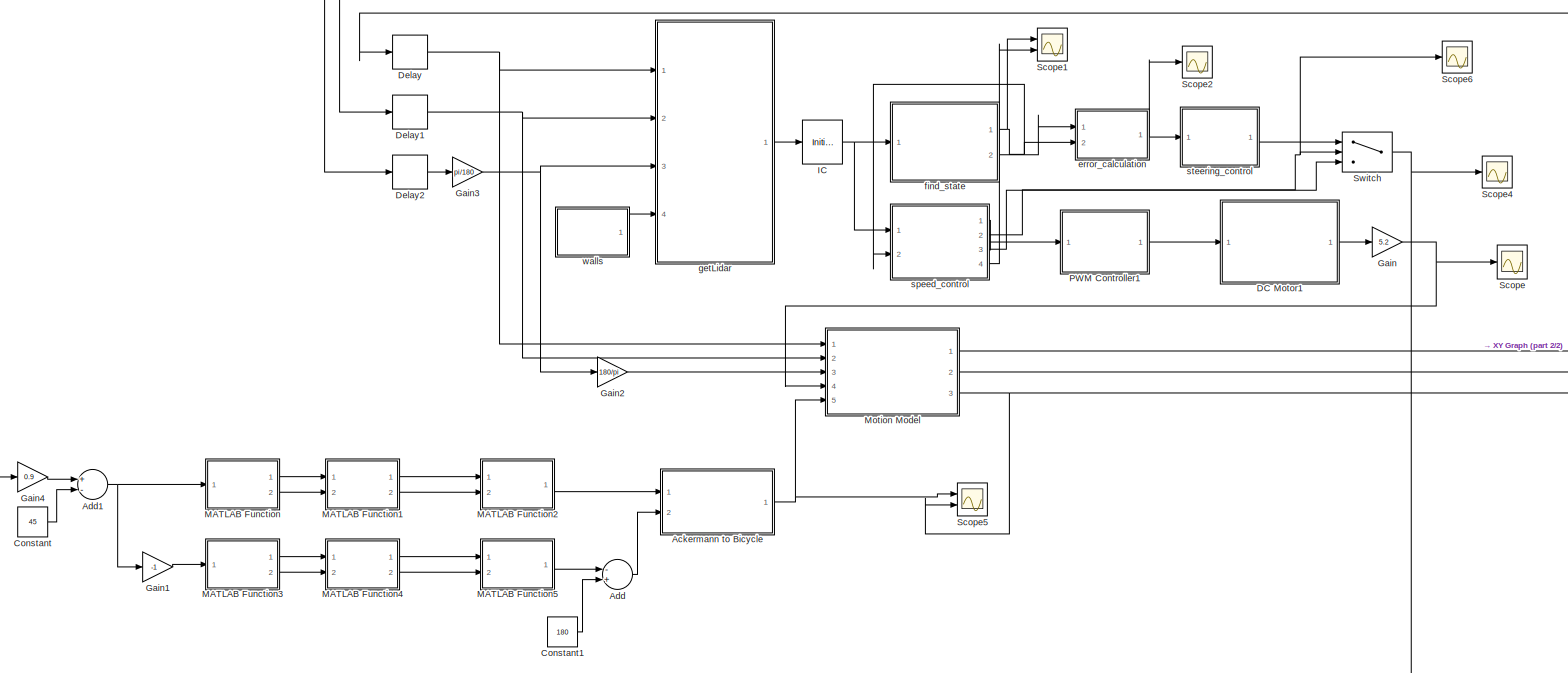
[diagram: root canvas - part 1/2, most of the canvas]
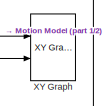
[diagram: root canvas - part 2/2, middle right region]
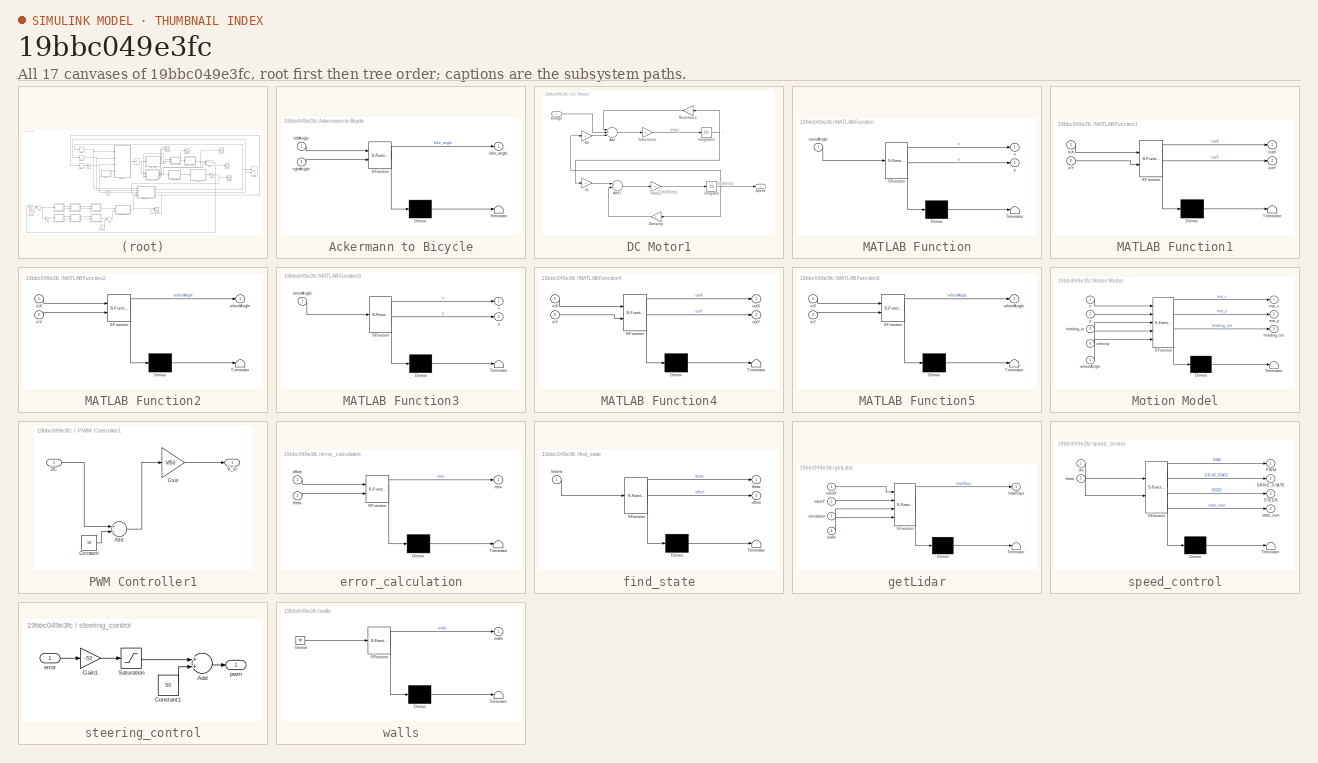
[diagram: thumbnail index - all 17 canvases of the model, root first then tree order]
MODEL slx_19bbc049e3fc
KIND model
CONFIG AbsTol = auto
CONFIG FixedStep = 0.1
CONFIG MaxStep = auto
CONFIG MinStep = auto
CONFIG RelTol = 1e-3
CONFIG SampleTimeConstraint = Unconstrained
CONFIG Solver = FixedStepAuto
CONFIG SolverMode = Auto
CONFIG SolverName = FixedStepAuto
CONFIG StartTime = 0.0
CONFIG StopTime = 600
BLOCK [SubSystem] Ackermann to Bicycle
  ErrorFcn = Stateflow.Translate.translate
  PermitHierarchicalResolution = ExplicitOnly
  Ports = [2, 1]
  RequestExecContextInheritance = off
  SFBlockType = MATLAB Function
  TreatAsAtomicUnit = on
  Variant = off
BLOCK [Demux] Ackermann to Bicycle/ Demux 
  Outputs = 1
  Ports = [1, 1]
BLOCK [S-Function] Ackermann to Bicycle/ SFunction 
  EnableBusSupport = on
  FunctionName = sf_sfun
  PortCounts = [2 2]
  Ports = [2, 2]
  SFunctionDeploymentMode = off
  Tag = Stateflow S-Function Steering 10
BLOCK [Terminator] Ackermann to Bicycle/ Terminator 
BLOCK [Outport] Ackermann to Bicycle/bike_angle
  IconDisplay = Port number
BLOCK [Inport] Ackermann to Bicycle/leftAngle
  IconDisplay = Port number
BLOCK [Inport] Ackermann to Bicycle/rightAngle
  IconDisplay = Port number
  Port = 2
BLOCK [Sum] Add
  InputSameDT = off
  Inputs = -+
  OutDataTypeStr = Inherit: Inherit via internal rule
  Ports = [2, 1]
  SaturateOnIntegerOverflow = off
BLOCK [Sum] Add1
  InputSameDT = off
  Inputs = +-
  OutDataTypeStr = Inherit: Inherit via internal rule
  Ports = [2, 1]
  SaturateOnIntegerOverflow = off
BLOCK [Constant] Constant
  Value = 45
BLOCK [Constant] Constant1
  Value = 180
BLOCK [SubSystem] DC Motor1
  Ports = [1, 1]
  RequestExecContextInheritance = off
  Variant = off
BLOCK [Sum] DC Motor1/Add
  InputSameDT = off
  Inputs = -+-
  OutDataTypeStr = Inherit: Inherit via internal rule
  Ports = [3, 1]
  SaturateOnIntegerOverflow = off
BLOCK [Sum] DC Motor1/Add1
  InputSameDT = off
  Inputs = +-
  OutDataTypeStr = Inherit: Inherit via internal rule
  Ports = [2, 1]
  SaturateOnIntegerOverflow = off
BLOCK [Gain] DC Motor1/Damping
  Gain = b
  OutDataTypeStr = Inherit: Inherit via internal rule
  ParamDataTypeStr = Inherit: Inherit via internal rule
  SaturateOnIntegerOverflow = off
BLOCK [Gain] DC Motor1/Inductunce
  Gain = 1/L
  OutDataTypeStr = Inherit: Inherit via internal rule
  ParamDataTypeStr = Inherit: Inherit via internal rule
  SaturateOnIntegerOverflow = off
BLOCK [Gain] DC Motor1/Inertia
  Gain = 1/J
  OutDataTypeStr = Inherit: Inherit via internal rule
  ParamDataTypeStr = Inherit: Inherit via internal rule
  SaturateOnIntegerOverflow = off
BLOCK [Integrator] DC Motor1/Integrator
  Ports = [1, 1]
BLOCK [Integrator] DC Motor1/Integrator1
  Ports = [1, 1]
BLOCK [Gain] DC Motor1/Ke
  Gain = K
  OutDataTypeStr = Inherit: Inherit via internal rule
  ParamDataTypeStr = Inherit: Inherit via internal rule
  SaturateOnIntegerOverflow = off
BLOCK [Gain] DC Motor1/Kt
  Gain = K
  OutDataTypeStr = Inherit: Inherit via internal rule
  ParamDataTypeStr = Inherit: Inherit via internal rule
  SaturateOnIntegerOverflow = off
BLOCK [Gain] DC Motor1/Resistance
  Gain = R
  OutDataTypeStr = Inherit: Inherit via internal rule
  ParamDataTypeStr = Inherit: Inherit via internal rule
  SaturateOnIntegerOverflow = off
BLOCK [Outport] DC Motor1/Speed
  IconDisplay = Port number
BLOCK [Inport] DC Motor1/Voltage
  IconDisplay = Port number
BLOCK [Delay] Delay
  DelayLength = 1
  InitialCondition = 40
  InputPortMap = u0
  Ports = [1, 1]
BLOCK [Delay] Delay1
  DelayLength = 1
  InitialCondition = 33
  InputPortMap = u0
  Ports = [1, 1]
BLOCK [Delay] Delay2
  DelayLength = 1
  InitialCondition = -90
  InputPortMap = u0
  Ports = [1, 1]
BLOCK [Gain] Gain
  Gain = 5.2
  OutDataTypeStr = Inherit: Inherit via internal rule
  ParamDataTypeStr = Inherit: Inherit via internal rule
  SaturateOnIntegerOverflow = off
BLOCK [Gain] Gain1
  Gain = -1
  OutDataTypeStr = Inherit: Inherit via internal rule
  ParamDataTypeStr = Inherit: Inherit via internal rule
  SaturateOnIntegerOverflow = off
BLOCK [Gain] Gain2
  Gain = 180/pi
  OutDataTypeStr = Inherit: Inherit via internal rule
  ParamDataTypeStr = Inherit: Inherit via internal rule
  SaturateOnIntegerOverflow = off
BLOCK [Gain] Gain3
  Gain = pi/180
  OutDataTypeStr = Inherit: Inherit via internal rule
  ParamDataTypeStr = Inherit: Inherit via internal rule
  SaturateOnIntegerOverflow = off
BLOCK [Gain] Gain4
  Gain = 0.9
  OutDataTypeStr = Inherit: Inherit via internal rule
  ParamDataTypeStr = Inherit: Inherit via internal rule
  SaturateOnIntegerOverflow = off
BLOCK [InitialCondition] IC
  Value = [60,0;60,0.012296;60,0.024592;60,0.036888;60,0.049183;60,0.061479;60,0.073775;60,0.086071;60,0.098367;60,0.11066;60,0.12296;60,0.13525;60,0.14755;60,0.15985;60,0.17214;60,0.18444;60,0.19673;60,0.20903;60,0.22133;60,0.23362;60,0.24592;60,0.25821;60,0.27051;60,0.2828;60,0.2951;60,0.3074;60,0.31969;60,0.33199;60,0.34428;60,0.35658;60,0.36888;60,0.38117;60,0.39347;60,0.40576;60,0.41806;60,0.43036;60,0...<+4751ch>
BLOCK [SubSystem] MATLAB Function
  ErrorFcn = Stateflow.Translate.translate
  PermitHierarchicalResolution = ExplicitOnly
  Ports = [1, 2]
  RequestExecContextInheritance = off
  SFBlockType = MATLAB Function
  TreatAsAtomicUnit = on
  Variant = off
BLOCK [Demux] MATLAB Function/ Demux 
  Outputs = 1
  Ports = [1, 1]
BLOCK [S-Function] MATLAB Function/ SFunction 
  EnableBusSupport = on
  FunctionName = sf_sfun
  PortCounts = [1 3]
  Ports = [1, 3]
  SFunctionDeploymentMode = off
  Tag = Stateflow S-Function Steering 2
BLOCK [Terminator] MATLAB Function/ Terminator 
BLOCK [Inport] MATLAB Function/servoAngle
  IconDisplay = Port number
BLOCK [Outport] MATLAB Function/x
  IconDisplay = Port number
BLOCK [Outport] MATLAB Function/y
  IconDisplay = Port number
  Port = 2
BLOCK [SubSystem] MATLAB Function1
  ErrorFcn = Stateflow.Translate.translate
  PermitHierarchicalResolution = ExplicitOnly
  Ports = [2, 2]
  RequestExecContextInheritance = off
  SFBlockType = MATLAB Function
  TreatAsAtomicUnit = on
  Variant = off
BLOCK [Demux] MATLAB Function1/ Demux 
  Outputs = 1
  Ports = [1, 1]
BLOCK [S-Function] MATLAB Function1/ SFunction 
  EnableBusSupport = on
  FunctionName = sf_sfun
  PortCounts = [2 3]
  Ports = [2, 3]
  SFunctionDeploymentMode = off
  Tag = Stateflow S-Function Steering 1
BLOCK [Terminator] MATLAB Function1/ Terminator 
BLOCK [Inport] MATLAB Function1/inX
  IconDisplay = Port number
BLOCK [Inport] MATLAB Function1/inY
  IconDisplay = Port number
  Port = 2
BLOCK [Outport] MATLAB Function1/outX
  IconDisplay = Port number
BLOCK [Outport] MATLAB Function1/outY
  IconDisplay = Port number
  Port = 2
BLOCK [SubSystem] MATLAB Function2
  ErrorFcn = Stateflow.Translate.translate
  PermitHierarchicalResolution = ExplicitOnly
  Ports = [2, 1]
  RequestExecContextInheritance = off
  SFBlockType = MATLAB Function
  TreatAsAtomicUnit = on
  Variant = off
BLOCK [Demux] MATLAB Function2/ Demux 
  Outputs = 1
  Ports = [1, 1]
BLOCK [S-Function] MATLAB Function2/ SFunction 
  EnableBusSupport = on
  FunctionName = sf_sfun
  PortCounts = [2 2]
  Ports = [2, 2]
  SFunctionDeploymentMode = off
  Tag = Stateflow S-Function Steering 3
BLOCK [Terminator] MATLAB Function2/ Terminator 
BLOCK [Inport] MATLAB Function2/inX
  IconDisplay = Port number
BLOCK [Inport] MATLAB Function2/inY
  IconDisplay = Port number
  Port = 2
BLOCK [Outport] MATLAB Function2/wheelAngle
  IconDisplay = Port number
BLOCK [SubSystem] MATLAB Function3
  ErrorFcn = Stateflow.Translate.translate
  PermitHierarchicalResolution = ExplicitOnly
  Ports = [1, 2]
  RequestExecContextInheritance = off
  SFBlockType = MATLAB Function
  TreatAsAtomicUnit = on
  Variant = off
BLOCK [Demux] MATLAB Function3/ Demux 
  Outputs = 1
  Ports = [1, 1]
BLOCK [S-Function] MATLAB Function3/ SFunction 
  EnableBusSupport = on
  FunctionName = sf_sfun
  PortCounts = [1 3]
  Ports = [1, 3]
  SFunctionDeploymentMode = off
  Tag = Stateflow S-Function Steering 11
BLOCK [Terminator] MATLAB Function3/ Terminator 
BLOCK [Inport] MATLAB Function3/servoAngle
  IconDisplay = Port number
BLOCK [Outport] MATLAB Function3/x
  IconDisplay = Port number
BLOCK [Outport] MATLAB Function3/y
  IconDisplay = Port number
  Port = 2
BLOCK [SubSystem] MATLAB Function4
  ErrorFcn = Stateflow.Translate.translate
  PermitHierarchicalResolution = ExplicitOnly
  Ports = [2, 2]
  RequestExecContextInheritance = off
  SFBlockType = MATLAB Function
  TreatAsAtomicUnit = on
  Variant = off
BLOCK [Demux] MATLAB Function4/ Demux 
  Outputs = 1
  Ports = [1, 1]
BLOCK [S-Function] MATLAB Function4/ SFunction 
  EnableBusSupport = on
  FunctionName = sf_sfun
  PortCounts = [2 3]
  Ports = [2, 3]
  SFunctionDeploymentMode = off
  Tag = Stateflow S-Function Steering 12
BLOCK [Terminator] MATLAB Function4/ Terminator 
BLOCK [Inport] MATLAB Function4/inX
  IconDisplay = Port number
BLOCK [Inport] MATLAB Function4/inY
  IconDisplay = Port number
  Port = 2
BLOCK [Outport] MATLAB Function4/outX
  IconDisplay = Port number
BLOCK [Outport] MATLAB Function4/outY
  IconDisplay = Port number
  Port = 2
BLOCK [SubSystem] MATLAB Function5
  ErrorFcn = Stateflow.Translate.translate
  PermitHierarchicalResolution = ExplicitOnly
  Ports = [2, 1]
  RequestExecContextInheritance = off
  SFBlockType = MATLAB Function
  TreatAsAtomicUnit = on
  Variant = off
BLOCK [Demux] MATLAB Function5/ Demux 
  Outputs = 1
  Ports = [1, 1]
BLOCK [S-Function] MATLAB Function5/ SFunction 
  EnableBusSupport = on
  FunctionName = sf_sfun
  PortCounts = [2 2]
  Ports = [2, 2]
  SFunctionDeploymentMode = off
  Tag = Stateflow S-Function Steering 13
BLOCK [Terminator] MATLAB Function5/ Terminator 
BLOCK [Inport] MATLAB Function5/inX
  IconDisplay = Port number
BLOCK [Inport] MATLAB Function5/inY
  IconDisplay = Port number
  Port = 2
BLOCK [Outport] MATLAB Function5/wheelAngle
  IconDisplay = Port number
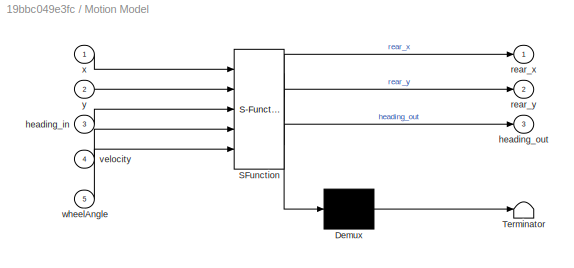
BLOCK [SubSystem] Motion Model
  ErrorFcn = Stateflow.Translate.translate
  PermitHierarchicalResolution = ExplicitOnly
  Ports = [5, 3]
  RequestExecContextInheritance = off
  SFBlockType = MATLAB Function
  TreatAsAtomicUnit = on
  Variant = off
BLOCK [Demux] Motion Model/ Demux 
  Outputs = 1
  Ports = [1, 1]
BLOCK [S-Function] Motion Model/ SFunction 
  EnableBusSupport = on
  FunctionName = sf_sfun
  PortCounts = [5 4]
  Ports = [5, 4]
  SFunctionDeploymentMode = off
  Tag = Stateflow S-Function Steering 9
BLOCK [Terminator] Motion Model/ Terminator 
BLOCK [Inport] Motion Model/heading_in
  IconDisplay = Port number
  Port = 3
BLOCK [Outport] Motion Model/heading_out
  IconDisplay = Port number
  Port = 3
BLOCK [Outport] Motion Model/rear_x
  IconDisplay = Port number
BLOCK [Outport] Motion Model/rear_y
  IconDisplay = Port number
  Port = 2
BLOCK [Inport] Motion Model/velocity
  IconDisplay = Port number
  Port = 4
BLOCK [Inport] Motion Model/wheelAngle
  IconDisplay = Port number
  Port = 5
BLOCK [Inport] Motion Model/x
  IconDisplay = Port number
BLOCK [Inport] Motion Model/y
  IconDisplay = Port number
  Port = 2
BLOCK [SubSystem] PWM Controller1
  Ports = [1, 1]
  RequestExecContextInheritance = off
  Variant = off
BLOCK [Sum] PWM Controller1/Add
  InputSameDT = off
  Inputs = +-
  OutDataTypeStr = Inherit: Inherit via internal rule
  Ports = [2, 1]
  SaturateOnIntegerOverflow = off
BLOCK [Constant] PWM Controller1/Constant
  Value = 50
BLOCK [Inport] PWM Controller1/DC
  IconDisplay = Port number
BLOCK [Gain] PWM Controller1/Gain
  Gain = V/50
  OutDataTypeStr = Inherit: Inherit via internal rule
  ParamDataTypeStr = Inherit: Inherit via internal rule
  SaturateOnIntegerOverflow = off
BLOCK [Outport] PWM Controller1/V_in
  IconDisplay = Port number
BLOCK [Scope] Scope
  Ports = [1]
  ScopeSpecificationString = Simulink.scopes.TimeScopeBlockCfg('CurrentConfiguration', extmgr.ConfigurationSet(extmgr.Configuration('Core','General UI',true),extmgr.Configuration('Core','Source UI',true),extmgr.Configuration('Sources','WiredSimulink',true),extmgr.Configuration('Visuals','Time Domain',true,'SerializedDisplays',{struct('MinYLimReal','-0.77922','MaxYLimReal','1.81818','YLabelReal','','MinYLimMag','0.00000','MaxY...<+1398ch>
BLOCK [Scope] Scope1
  NumInputPorts = 2
  Ports = [2]
  ScopeSpecificationString = Simulink.scopes.TimeScopeBlockCfg('CurrentConfiguration', extmgr.ConfigurationSet(extmgr.Configuration('Core','General UI',true),extmgr.Configuration('Core','Source UI',true),extmgr.Configuration('Sources','WiredSimulink',true,'DataLoggingVariableName','ScopeData1'),extmgr.Configuration('Visuals','Time Domain',true,'SerializedDisplays',{struct('MinYLimReal','-2.50334','MaxYLimReal','6.94482','YLab...<+1429ch>
BLOCK [Scope] Scope2
  Ports = [1]
  ScopeSpecificationString = Simulink.scopes.TimeScopeBlockCfg('CurrentConfiguration', extmgr.ConfigurationSet(extmgr.Configuration('Core','General UI',true),extmgr.Configuration('Core','Source UI',true),extmgr.Configuration('Sources','WiredSimulink',true,'DataLoggingVariableName','ScopeData2'),extmgr.Configuration('Visuals','Time Domain',true,'SerializedDisplays',{struct('MinYLimReal','-25.334','MaxYLimReal','32.66562','YLab...<+1433ch>
BLOCK [Scope] Scope4
  Ports = [1]
  ScopeSpecificationString = Simulink.scopes.TimeScopeBlockCfg('CurrentConfiguration', extmgr.ConfigurationSet(extmgr.Configuration('Core','General UI',true),extmgr.Configuration('Core','Source UI',true),extmgr.Configuration('Sources','WiredSimulink',true,'DataLoggingVariableName','ScopeData2'),extmgr.Configuration('Visuals','Time Domain',true,'SerializedDisplays',{struct('MinYLimReal','-12.5','MaxYLimReal','112.5','YLabelRea...<+1406ch>
BLOCK [Scope] Scope5
  NumInputPorts = 2
  Ports = [2]
  ScopeSpecificationString = Simulink.scopes.TimeScopeBlockCfg('CurrentConfiguration', extmgr.ConfigurationSet(extmgr.Configuration('Core','General UI',true),extmgr.Configuration('Core','Source UI',true),extmgr.Configuration('Sources','WiredSimulink',true,'DataLoggingVariableName','ScopeData3'),extmgr.Configuration('Visuals','Time Domain',true,'SerializedDisplays',{struct('MinYLimReal','-693.85459','MaxYLimReal','206.61122','...<+1460ch>
BLOCK [Scope] Scope6
  Ports = [1]
  ScopeSpecificationString = Simulink.scopes.TimeScopeBlockCfg('CurrentConfiguration', extmgr.ConfigurationSet(extmgr.Configuration('Core','General UI',true),extmgr.Configuration('Core','Source UI',true),extmgr.Configuration('Sources','WiredSimulink',true,'DataLoggingVariableName','ScopeData1'),extmgr.Configuration('Visuals','Time Domain',true,'SerializedDisplays',{struct('MinYLimReal','-0.125','MaxYLimReal','1.125','YLabelRe...<+1427ch>
BLOCK [Switch] Switch
  Criteria = u2 ~= 0
  InputSameDT = off
  SaturateOnIntegerOverflow = off
BLOCK [Reference] XY Graph  REF=simulink/Sinks/XY Graph
  Ports = [2]
  SourceBlock = simulink/Sinks/XY Graph
  SourceType = XY scope.
BLOCK [SubSystem] error_calculation
  ErrorFcn = Stateflow.Translate.translate
  PermitHierarchicalResolution = ExplicitOnly
  Ports = [2, 1]
  RequestExecContextInheritance = off
  SFBlockType = MATLAB Function
  TreatAsAtomicUnit = on
  Variant = off
BLOCK [Demux] error_calculation/ Demux 
  Outputs = 1
  Ports = [1, 1]
BLOCK [S-Function] error_calculation/ SFunction 
  EnableBusSupport = on
  FunctionName = sf_sfun
  PortCounts = [2 2]
  Ports = [2, 2]
  SFunctionDeploymentMode = off
  Tag = Stateflow S-Function Steering 7
BLOCK [Terminator] error_calculation/ Terminator 
BLOCK [Outport] error_calculation/error
  IconDisplay = Port number
BLOCK [Inport] error_calculation/offset
  IconDisplay = Port number
BLOCK [Inport] error_calculation/theta
  IconDisplay = Port number
  Port = 2
BLOCK [SubSystem] find_state
  ErrorFcn = Stateflow.Translate.translate
  PermitHierarchicalResolution = ExplicitOnly
  Ports = [1, 2]
  RequestExecContextInheritance = off
  SFBlockType = MATLAB Function
  TreatAsAtomicUnit = on
  Variant = off
BLOCK [Demux] find_state/ Demux 
  Outputs = 1
  Ports = [1, 1]
BLOCK [S-Function] find_state/ SFunction 
  EnableBusSupport = on
  FunctionName = sf_sfun
  PortCounts = [1 3]
  Ports = [1, 3]
  SFunctionDeploymentMode = off
  Tag = Stateflow S-Function Steering 6
BLOCK [Terminator] find_state/ Terminator 
BLOCK [Inport] find_state/beams
  IconDisplay = Port number
BLOCK [Outport] find_state/offset
  IconDisplay = Port number
  Port = 2
BLOCK [Outport] find_state/theta
  IconDisplay = Port number
BLOCK [SubSystem] getLidar
  ErrorFcn = Stateflow.Translate.translate
  PermitHierarchicalResolution = ExplicitOnly
  Ports = [4, 1]
  RequestExecContextInheritance = off
  SFBlockType = MATLAB Function
  TreatAsAtomicUnit = on
  Variant = off
BLOCK [Demux] getLidar/ Demux 
  Outputs = 1
  Ports = [1, 1]
BLOCK [S-Function] getLidar/ SFunction 
  EnableBusSupport = on
  FunctionName = sf_sfun
  PortCounts = [4 2]
  Ports = [4, 2]
  SFunctionDeploymentMode = off
  Tag = Stateflow S-Function Steering 5
BLOCK [Terminator] getLidar/ Terminator 
BLOCK [Outport] getLidar/lidarRays
  IconDisplay = Port number
BLOCK [Inport] getLidar/orientation
  IconDisplay = Port number
  Port = 3
BLOCK [Inport] getLidar/robotX
  IconDisplay = Port number
BLOCK [Inport] getLidar/robotY
  IconDisplay = Port number
  Port = 2
BLOCK [Inport] getLidar/walls
  IconDisplay = Port number
  Port = 4
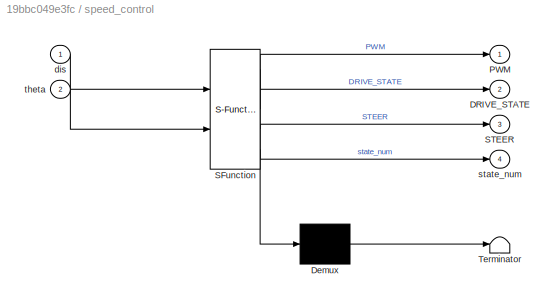
BLOCK [SubSystem] speed_control
  ErrorFcn = Stateflow.Translate.translate
  PermitHierarchicalResolution = ExplicitOnly
  Ports = [2, 4]
  RequestExecContextInheritance = off
  SFBlockType = Chart
  TreatAsAtomicUnit = on
  Variant = off
BLOCK [Demux] speed_control/ Demux 
  Outputs = 1
  Ports = [1, 1]
BLOCK [S-Function] speed_control/ SFunction 
  EnableBusSupport = on
  FunctionName = sf_sfun
  PortCounts = [2 5]
  Ports = [2, 5]
  SFunctionDeploymentMode = off
  Tag = Stateflow S-Function Steering 8
BLOCK [Terminator] speed_control/ Terminator 
BLOCK [Outport] speed_control/DRIVE_STATE
  IconDisplay = Port number
  Port = 2
BLOCK [Outport] speed_control/PWM
  IconDisplay = Port number
BLOCK [Outport] speed_control/STEER
  IconDisplay = Port number
  Port = 3
BLOCK [Inport] speed_control/dis
  IconDisplay = Port number
BLOCK [Outport] speed_control/state_num
  IconDisplay = Port number
  Port = 4
BLOCK [Inport] speed_control/theta
  IconDisplay = Port number
  Port = 2
BLOCK [SubSystem] steering_control
  Ports = [1, 1]
  RequestExecContextInheritance = off
  Variant = off
BLOCK [Sum] steering_control/Add
  InputSameDT = off
  OutDataTypeStr = Inherit: Inherit via internal rule
  Ports = [2, 1]
  SaturateOnIntegerOverflow = off
BLOCK [Constant] steering_control/Constant1
  Value = 50
BLOCK [Gain] steering_control/Gain1
  Gain = -50
  OutDataTypeStr = Inherit: Inherit via internal rule
  ParamDataTypeStr = Inherit: Inherit via internal rule
  SaturateOnIntegerOverflow = off
BLOCK [Saturate] steering_control/Saturation
  InputPortMap = u0
  LowerLimit = -50
  Ports = [1, 1]
  UpperLimit = 50
BLOCK [Inport] steering_control/error
  IconDisplay = Port number
BLOCK [Outport] steering_control/pwm
  IconDisplay = Port number
BLOCK [SubSystem] walls
  ErrorFcn = Stateflow.Translate.translate
  PermitHierarchicalResolution = ExplicitOnly
  Ports = [0, 1]
  RequestExecContextInheritance = off
  SFBlockType = MATLAB Function
  TreatAsAtomicUnit = on
  Variant = off
BLOCK [Demux] walls/ Demux 
  Outputs = 1
  Ports = [1, 1]
BLOCK [Ground] walls/ Ground 
BLOCK [S-Function] walls/ SFunction 
  EnableBusSupport = on
  FunctionName = sf_sfun
  PortCounts = [1 2]
  Ports = [1, 2]
  SFunctionDeploymentMode = off
  Tag = Stateflow S-Function Steering 4
BLOCK [Terminator] walls/ Terminator 
BLOCK [Outport] walls/walls
  IconDisplay = Port number
ANNOTATION DC Motor1: d/dt(i)
ANNOTATION DC Motor1: d/dt(theta)
ANNOTATION DC Motor1: d2/dt2(theta)
ANNOTATION DC Motor1: i
NET Ackermann to Bicycle:1 -> Motion Model:5, Scope5:1
NET Add1:1 -> Gain1:1, MATLAB Function:1
LINE Add:1 -> Ackermann to Bicycle:2
LINE Constant1:1 -> Add:2
LINE Constant:1 -> Add1:2
LINE DC Motor1/Add1:1 -> DC Motor1/Inertia:1
LINE DC Motor1/Add:1 -> DC Motor1/Inductunce:1
LINE DC Motor1/Damping:1 -> DC Motor1/Add1:2
LINE DC Motor1/Inductunce:1 -> DC Motor1/Integrator1:1
LINE DC Motor1/Inertia:1 -> DC Motor1/Integrator:1
NET DC Motor1/Integrator1:1 -> DC Motor1/Kt:1, DC Motor1/Resistance:1
NET DC Motor1/Integrator:1 -> DC Motor1/Damping:1, DC Motor1/Ke:1, DC Motor1/Speed:1
LINE DC Motor1/Ke:1 -> DC Motor1/Add:3
LINE DC Motor1/Kt:1 -> DC Motor1/Add1:1
LINE DC Motor1/Resistance:1 -> DC Motor1/Add:1
LINE DC Motor1/Voltage:1 -> DC Motor1/Add:2
LINE DC Motor1:1 -> Gain:1
NET Delay1:1 -> Motion Model:2, getLidar:2
LINE Delay2:1 -> Gain3:1
NET Delay:1 -> Motion Model:1, getLidar:1
LINE Gain1:1 -> MATLAB Function3:1
LINE Gain2:1 -> Motion Model:3
NET Gain3:1 -> Gain2:1, getLidar:3
LINE Gain4:1 -> Add1:1
NET Gain:1 -> Motion Model:4, Scope:1
NET IC:1 -> find_state:1, speed_control:1
LINE MATLAB Function1:1 -> MATLAB Function2:1
LINE MATLAB Function1:2 -> MATLAB Function2:2
LINE MATLAB Function2:1 -> Ackermann to Bicycle:1
LINE MATLAB Function3:1 -> MATLAB Function4:1
LINE MATLAB Function3:2 -> MATLAB Function4:2
LINE MATLAB Function4:1 -> MATLAB Function5:1
LINE MATLAB Function4:2 -> MATLAB Function5:2
LINE MATLAB Function5:1 -> Add:1
LINE MATLAB Function:1 -> MATLAB Function1:1
LINE MATLAB Function:2 -> MATLAB Function1:2
NET Motion Model:1 -> Delay:1, XY Graph:1
NET Motion Model:2 -> Delay1:1, XY Graph:2
NET Motion Model:3 -> Delay2:1, Scope5:2
LINE PWM Controller1/Add:1 -> PWM Controller1/Gain:1
LINE PWM Controller1/Constant:1 -> PWM Controller1/Add:2
LINE PWM Controller1/DC:1 -> PWM Controller1/Add:1
LINE PWM Controller1/Gain:1 -> PWM Controller1/V_in:1
LINE PWM Controller1:1 -> DC Motor1:1
NET Switch:1 -> Gain4:1, Scope4:1
NET error_calculation:1 -> Scope2:1, steering_control:1
NET find_state:1 -> Scope1:1, error_calculation:2, speed_control:2
LINE find_state:2 -> error_calculation:1
LINE getLidar:1 -> IC:1
LINE speed_control:1 -> PWM Controller1:1
NET speed_control:2 -> Scope6:1, Switch:2
LINE speed_control:3 -> Switch:3
LINE speed_control:4 -> Scope1:2
LINE steering_control/Add:1 -> steering_control/pwm:1
LINE steering_control/Constant1:1 -> steering_control/Add:2
LINE steering_control/Gain1:1 -> steering_control/Saturation:1
LINE steering_control/Saturation:1 -> steering_control/Add:1
LINE steering_control/error:1 -> steering_control/Gain1:1
LINE steering_control:1 -> Switch:1
LINE walls:1 -> getLidar:4
note: NET lines group one-source signal fan-out (src -> all destinations, sorted); 1:1 wires keep LINE
CHART MATLAB Function1 states=1 transitions=1
  STATE_LABEL 'eML_blk_kernel()'
  STATE_LABEL 'SCRIPT:\nfunction [outX,outY]  = pivotArm(inX,inY)\n%#codegen\nD = hypot(-1 - inX, -5 - inY);\ntheta1 = acosd((3.64^2 - 2^2 - D^2)/(-2*2*D));\ntheta2 = acosd((1+inX)/D);\nthetaTotal = 360 - theta1 - theta2;\n\noutLegAngle = thetaTotal - 180 + tand(1/2);\n\noutX = -1 + sqrt(5)*cosd(outLegAngle);\noutY = -5 + sqrt(5)*sind(outLegAngle);'
CHART MATLAB Function states=1 transitions=1
  STATE_LABEL 'eML_blk_kernel()'
  STATE_LABEL 'SCRIPT:\nfunction [x,y] = servoHorn(servoAngle)\n%#codegen\n\ny = -7.07 + sind(270 - servoAngle);\nx = 2.4813 + cosd(270 - servoAngle);'
CHART MATLAB Function2 states=1 transitions=1
  STATE_LABEL 'eML_blk_kernel()'
  STATE_LABEL 'SCRIPT:\nfunction wheelAngle = knuckle(inX,inY)\n%#codegen\nD = hypot(-10.5 - inX,0 - inY);\ntheta1 = acosd((9.2^2 - 1.5811^2 - D^2)/(-2*1.5811*D));\ntheta2 = acosd((10.5+inX)/D);\nthetaTotal = 360 - theta1 - theta2;\nwheelAngle = thetaTotal - 283.9 + 90;'
CHART walls states=1 transitions=1
  STATE_LABEL 'eML_blk_kernel()'
  STATE_LABEL 'SCRIPT:\nfunction walls = fcn()\nwalls=[1   1  300 1;\n       1   60 300 60;\n       300 1  300  60;\n       1   1  1   60];\nend'
CHART getLidar states=1 transitions=1
  STATE_LABEL 'eML_blk_kernel()'
  STATE_LABEL 'SCRIPT:\nfunction lidarRays = fcn(robotX,robotY,orientation,walls)\n\nnumLines = 512;\nlidarRange = 60;\n\n%Create rays matrix\nlidarRays=zeros(numLines,2);\nt = linspace(0,2*pi,numLines+1);\nfor i = 1:(length(t)-1);\n    lidarRays(i,1) = lidarRange;\n    lidarRays(i,2) = t(i);\nend\n\n[numWalls,~] = size(walls);\n[numRays,~] = size(lidarRays);\n\n%For each LIDAR ray...\nfor i = 1:numRays\n    \n    %Find its ending ...<+1372ch>'
CHART find_state states=1 transitions=1
  STATE_LABEL 'eML_blk_kernel()'
  STATE_LABEL 'SCRIPT:\nfunction [theta,offset]  = fcn(beams)\nstep=2*pi/length(beams);\ntheta=0;\n[~,minimum]=min(beams(:,1));\n[~,min_left]=min(beams(2:(length(beams)/2),1));\n[~,min_right]=min(beams((length(beams)/2)+2:end,1));\nfirstBeam = beams(1,1);\nrearBeam = beams(129,1)\n\n%if minimum is in front or behind then\n\ndisp((size(beams)));\nif (firstBeam < rearBeam)\n    if minimum<=length(beams)/2\n        theta=(pi/2)-(...<+483ch>'
CHART error_calculation states=1 transitions=1
  STATE_LABEL 'eML_blk_kernel()'
  STATE_LABEL 'SCRIPT:\nfunction error = fcn(offset,theta)\nL=10;\nerror=offset+L*sin(theta);\n%positive error means turn right'
CHART speed_control states=6 transitions=8
  STATE_LABEL 'forward\ndu: PWM=80;\n DRIVE_STATE = 1;\n state_num=1;\n'
  STATE_LABEL 'stop\ndu: PWM=50;\n DRIVE_STATE = 0;\n STEER = 50;\n state_num=2;'
  STATE_LABEL 'back_right\ndu: PWM = 40;\n DRIVE_STATE = 0;\n STEER = 0;\n state_num=3;'
  STATE_LABEL 'back_left\ndu: PWM = 40;\n DRIVE_STATE = 0;\n STEER = 100;\n state_num=5;'
  STATE_LABEL 'straighten_left\ndu: PWM = 80;\n DRIVE_STATE = 0;\n STEER = 100;\n state_num=4;'
  STATE_LABEL 'straighten_right\ndu: PWM = 80;\n DRIVE_STATE = 0;\n STEER = 0;\n state_num=6;\n'
CHART Motion Model states=1 transitions=1
  STATE_LABEL 'eML_blk_kernel()'
  STATE_LABEL 'SCRIPT:\nfunction [rear_x,rear_y,heading_out] = fcn(x,y,heading_in,velocity,wheelAngle)\n%#codegen\n%heading_in=rad2deg(heading_in);\ntimestep = 0.1; %seconds\nwheelBase = 16;\nrw.x = x;\nrw.y = y;\nfw.x = rw.x+cosd(heading_in)*wheelBase;\nfw.y = rw.y+sind(heading_in)*wheelBase;\n\nif(wheelAngle == 90)\n    wheelAngle = wheelAngle + 0.0001;\nend\nalpha = wheelAngle;\nturningRadius = tand(alpha)*wheelBase;\narcLen...<+346ch>'
CHART Ackermann to Bicycle states=1 transitions=1
  STATE_LABEL 'eML_blk_kernel()'
  STATE_LABEL 'SCRIPT:\nfunction bike_angle  = fcn(leftAngle,rightAngle)\n%#codegen\n    wheelbase = 32;\n    wheelwidth = 25;\n    if (leftAngle < 89.3)   \n        fraction = (2*wheelwidth*tand(rightAngle))/(tand(leftAngle)-tand(rightAngle));\n        fraction = (fraction + wheelwidth)/wheelbase;\n        bike_angle = atand(fraction);\n    elseif (leftAngle > 90.7)\n        temp = rightAngle;\n        rightAngle = leftAn...<+269ch>'
CHART MATLAB Function3 states=1 transitions=1
  STATE_LABEL 'eML_blk_kernel()'
  STATE_LABEL 'SCRIPT:\nfunction [x,y] = servoHorn(servoAngle)\n%#codegen\n\ny = -7.07 + sind(270 - servoAngle);\nx = 2.4813 + cosd(270 - servoAngle);'
CHART MATLAB Function4 states=1 transitions=1
  STATE_LABEL 'eML_blk_kernel()'
  STATE_LABEL 'SCRIPT:\nfunction [outX,outY]  = pivotArm(inX,inY)\n%#codegen\nD = hypot(-1 - inX, -5 - inY);\ntheta1 = acosd((3.64^2 - 2^2 - D^2)/(-2*2*D));\ntheta2 = acosd((1+inX)/D);\nthetaTotal = 360 - theta1 - theta2;\n\noutLegAngle = thetaTotal - 180 + tand(1/2);\n\noutX = -1 + sqrt(5)*cosd(outLegAngle);\noutY = -5 + sqrt(5)*sind(outLegAngle);'
CHART MATLAB Function5 states=1 transitions=1
  STATE_LABEL 'eML_blk_kernel()'
  STATE_LABEL 'SCRIPT:\nfunction wheelAngle = knuckle(inX,inY)\n%#codegen\nD = hypot(-10.5 - inX,0 - inY);\ntheta1 = acosd((9.2^2 - 1.5811^2 - D^2)/(-2*1.5811*D));\ntheta2 = acosd((10.5+inX)/D);\nthetaTotal = 360 - theta1 - theta2;\nwheelAngle = thetaTotal - 283.9 + 90;'
